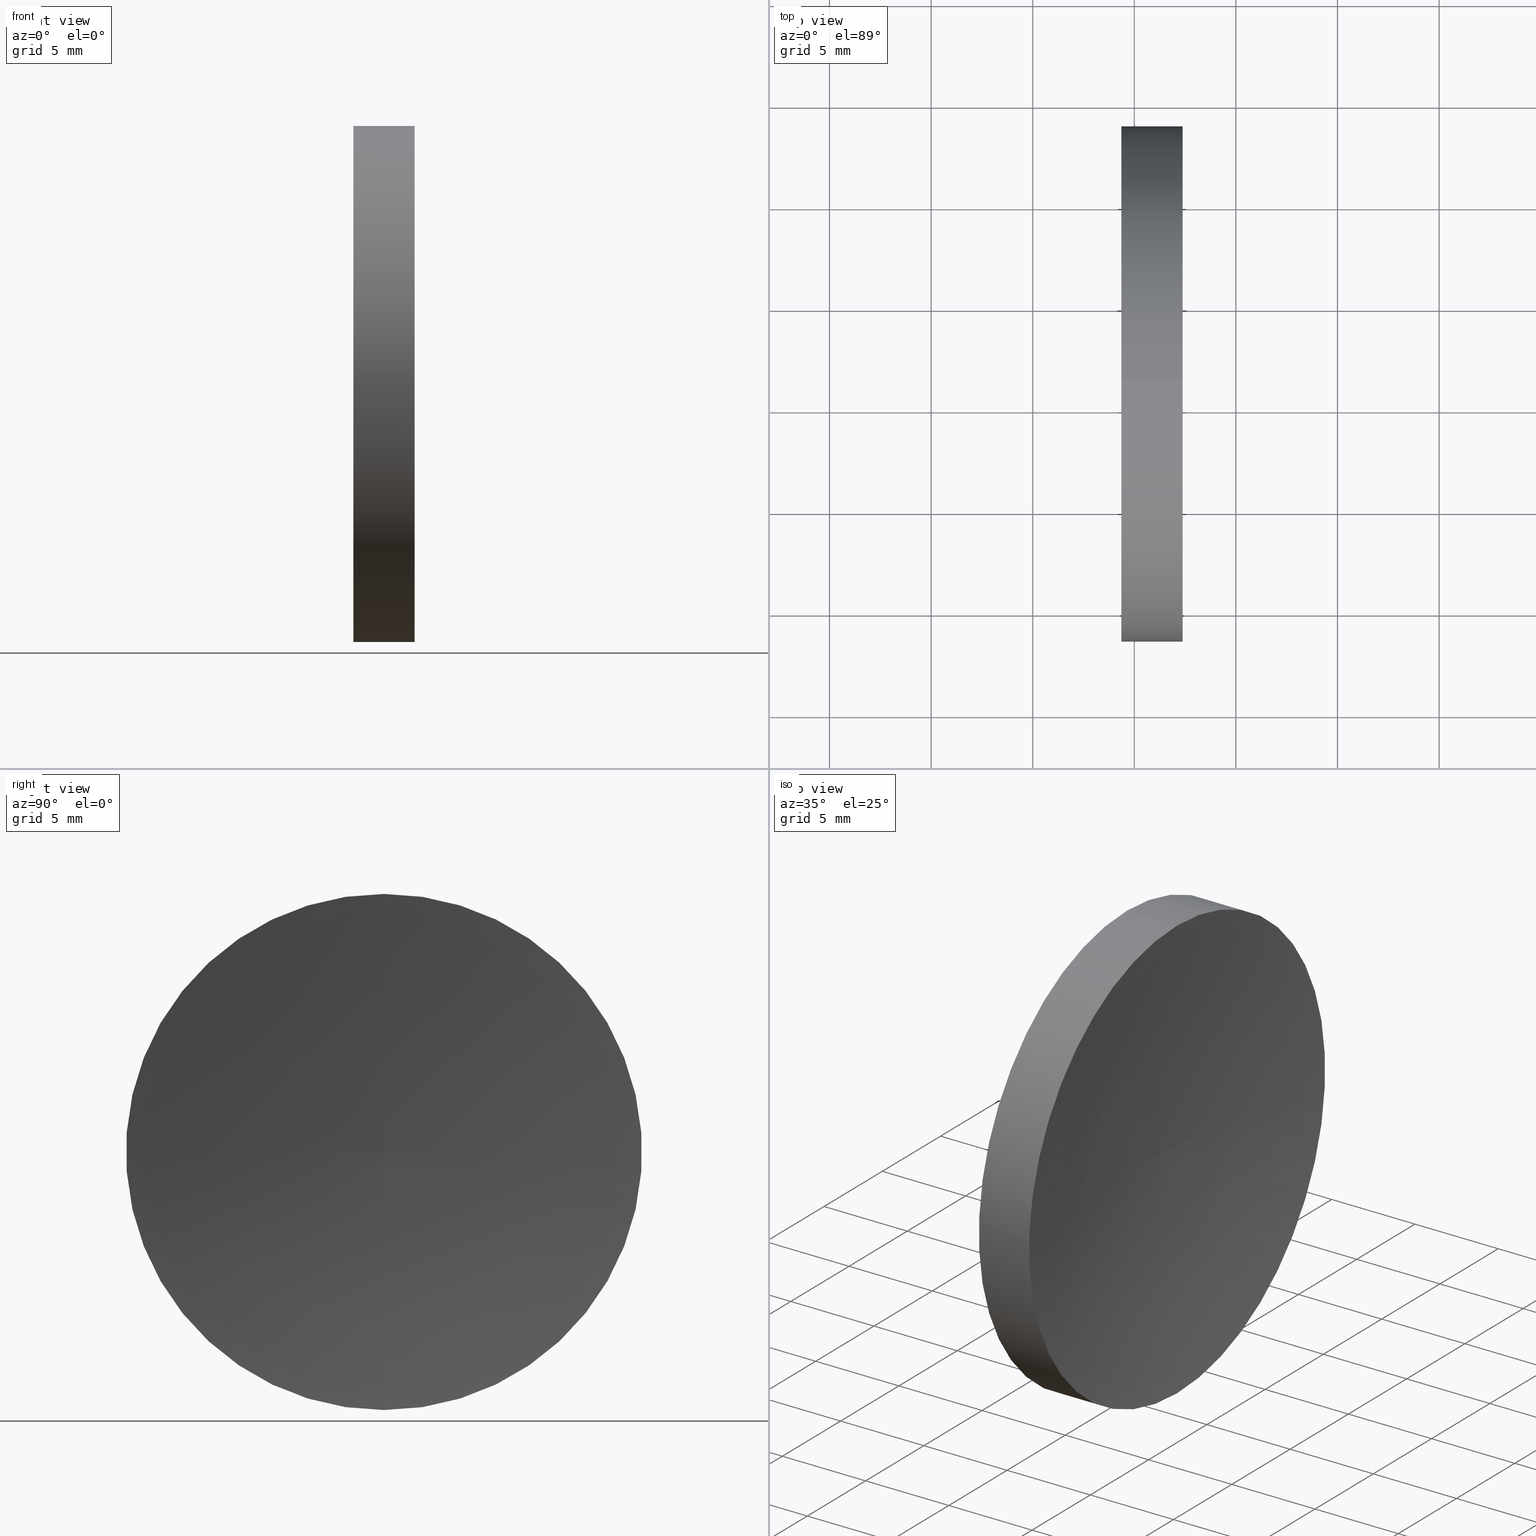
[diagram: canonical four-view strip — front | top / right | iso, engineering-drawing reading convention]
A machine part, canonical four-view strip (front | top / right | iso — engineering-drawing reading convention). The complete STEP part file that produces these views, byte-faithful:
ISO-10303-21;
HEADER;
FILE_DESCRIPTION (( 'STEP AP214' ),
    '1' );
FILE_NAME ('120269.STEP',
    '2019-06-25T03:28:47',
    ( '' ),
    ( '' ),
    'SwSTEP 2.0',
    'SolidWorks 2016',
    '' );
FILE_SCHEMA (( 'AUTOMOTIVE_DESIGN' ));
ENDSEC;

DATA;
#1 = ORIENTED_EDGE ( 'NONE', *, *, #23, .T. ) ;
#2 = CARTESIAN_POINT ( 'NONE',  ( 201.5929279294802000, 71.19398908659370300, 0.02143188014522290400 ) ) ;
#3 = DIRECTION ( 'NONE',  ( 0.0000000000000000000, 0.0000000000000000000, 1.000000000000000000 ) ) ;
#4 = CYLINDRICAL_SURFACE ( 'NONE', #152, 12.69999999999998900 ) ;
#5 = PRODUCT_DEFINITION_SHAPE ( 'NONE', 'NONE',  #13 ) ;
#6 = CIRCLE ( 'NONE', #141, 12.70000000000000300 ) ;
#7 = AXIS2_PLACEMENT_3D ( 'NONE', #111, #52, #41 ) ;
#8 = ORIENTED_EDGE ( 'NONE', *, *, #32, .T. ) ;
#9 = DIRECTION ( 'NONE',  ( 0.0000000000000000000, 0.0000000000000000000, 1.000000000000000000 ) ) ;
#10 = DIRECTION ( 'NONE',  ( -1.000000000000000000, -0.0000000000000000000, -0.0000000000000000000 ) ) ;
#11 = MECHANICAL_DESIGN_GEOMETRIC_PRESENTATION_REPRESENTATION (  '', ( #31 ), #85 ) ;
#12 = DIRECTION ( 'NONE',  ( 0.0000000000000000000, -1.000000000000000000, 0.0000000000000000000 ) ) ;
#13 = PRODUCT_DEFINITION ( 'δ֪', '', #54, #126 ) ;
#14 =( NAMED_UNIT ( * ) SI_UNIT ( $, .STERADIAN. ) SOLID_ANGLE_UNIT ( ) );
#15 = ORIENTED_EDGE ( 'NONE', *, *, #105, .T. ) ;
#16 = APPLICATION_PROTOCOL_DEFINITION ( 'draft international standard', 'automotive_design', 1998, #25 ) ;
#17 =( LENGTH_UNIT ( ) NAMED_UNIT ( * ) SI_UNIT ( .MILLI., .METRE. ) );
#18 = AXIS2_PLACEMENT_3D ( 'NONE', #99, #61, #24 ) ;
#19 =( GEOMETRIC_REPRESENTATION_CONTEXT ( 3 ) GLOBAL_UNCERTAINTY_ASSIGNED_CONTEXT ( ( #136 ) ) GLOBAL_UNIT_ASSIGNED_CONTEXT ( ( #17, #140, #14 ) ) REPRESENTATION_CONTEXT ( 'NONE', 'WORKASPACE' ) );
#20 = DIRECTION ( 'NONE',  ( -1.000000000000000000, -0.0000000000000000000, -0.0000000000000000000 ) ) ;
#21 = DIRECTION ( 'NONE',  ( -1.000000000000000000, -0.0000000000000000000, -0.0000000000000000000 ) ) ;
#22 = ORIENTED_EDGE ( 'NONE', *, *, #32, .F. ) ;
#23 = EDGE_CURVE ( 'NONE', #90, #123, #156, .T. ) ;
#24 = DIRECTION ( 'NONE',  ( 0.0000000000000000000, 0.0000000000000000000, 1.000000000000000000 ) ) ;
#25 = APPLICATION_CONTEXT ( 'automotive_design' ) ;
#26 = ORIENTED_EDGE ( 'NONE', *, *, #27, .F. ) ;
#27 = EDGE_CURVE ( 'NONE', #90, #155, #120, .T. ) ;
#28 = ORIENTED_EDGE ( 'NONE', *, *, #45, .T. ) ;
#29 = ADVANCED_FACE ( 'NONE', ( #92 ), #89, .T. ) ;
#30 = VECTOR ( 'NONE', #21, 1000.000000000000000 ) ;
#31 = STYLED_ITEM ( 'NONE', ( #113 ), #69 ) ;
#32 = EDGE_CURVE ( 'NONE', #46, #123, #6, .T. ) ;
#33 = PRODUCT ( '120269', '120269', '', ( #83 ) ) ;
#34 = FACE_OUTER_BOUND ( 'NONE', #79, .T. ) ;
#35 = CARTESIAN_POINT ( 'NONE',  ( 122.3779162781598300, 71.19398908659370300, -12.69999999999996600 ) ) ;
#36 = ORIENTED_EDGE ( 'NONE', *, *, #91, .T. ) ;
#37 = SHAPE_DEFINITION_REPRESENTATION ( #5, #69 ) ;
#38 = CARTESIAN_POINT ( 'NONE',  ( 122.3779162781598300, 71.19398908659370300, 0.0000000000000000000 ) ) ;
#39 = FILL_AREA_STYLE_COLOUR ( '', #103 ) ;
#40 = FILL_AREA_STYLE_COLOUR ( '', #56 ) ;
#41 = DIRECTION ( 'NONE',  ( 0.0000000000000000000, 0.0000000000000000000, -1.000000000000000000 ) ) ;
#42 = CIRCLE ( 'NONE', #161, 80.22999999999996100 ) ;
#43 = AXIS2_PLACEMENT_3D ( 'NONE', #65, #82, #3 ) ;
#44 = DIRECTION ( 'NONE',  ( 0.0000000000000000000, 0.0000000000000000000, 1.000000000000000000 ) ) ;
#45 = EDGE_CURVE ( 'NONE', #155, #46, #130, .T. ) ;
#46 = VERTEX_POINT ( 'NONE', #110 ) ;
#47 = PRESENTATION_LAYER_ASSIGNMENT (  '', '', ( #31 ) ) ;
#48 = CARTESIAN_POINT ( 'NONE',  ( 111.9552297575605700, 71.19398908659370300, 0.0000000000000000000 ) ) ;
#49 = DIRECTION ( 'NONE',  ( -1.000000000000000000, -0.0000000000000000000, -0.0000000000000000000 ) ) ;
#50 =( NAMED_UNIT ( * ) PLANE_ANGLE_UNIT ( ) SI_UNIT ( $, .RADIAN. ) );
#51 = CIRCLE ( 'NONE', #43, 12.69999999999997400 ) ;
#52 = DIRECTION ( 'NONE',  ( 1.000000000000000000, 0.0000000000000000000, 0.0000000000000000000 ) ) ;
#53 = APPLICATION_CONTEXT ( 'automotive_design' ) ;
#54 = PRODUCT_DEFINITION_FORMATION_WITH_SPECIFIED_SOURCE ( '�κ�', '', #33, .NOT_KNOWN. ) ;
#55 = ADVANCED_FACE ( 'NONE', ( #34 ), #160, .F. ) ;
#56 = COLOUR_RGB ( '',1.000000000000000000, 1.000000000000000000, 1.000000000000000000 ) ;
#57 =( GEOMETRIC_REPRESENTATION_CONTEXT ( 3 ) GLOBAL_UNCERTAINTY_ASSIGNED_CONTEXT ( ( #59 ) ) GLOBAL_UNIT_ASSIGNED_CONTEXT ( ( #164, #50, #165 ) ) REPRESENTATION_CONTEXT ( 'NONE', 'WORKASPACE' ) );
#58 = ORIENTED_EDGE ( 'NONE', *, *, #27, .T. ) ;
#59 = UNCERTAINTY_MEASURE_WITH_UNIT (LENGTH_MEASURE( 1.000000000000000100E-005 ), #164, 'distance_accuracy_value', 'NONE');
#60 = DIRECTION ( 'NONE',  ( 0.0000000000000000000, 0.0000000000000000000, 1.000000000000000000 ) ) ;
#61 = DIRECTION ( 'NONE',  ( -1.000000000000000000, -0.0000000000000000000, -0.0000000000000000000 ) ) ;
#62 = SURFACE_STYLE_USAGE ( .BOTH. , #145 ) ;
#63 = DIRECTION ( 'NONE',  ( 0.0000000000000000000, -1.729750443451883900E-016, 1.000000000000000000 ) ) ;
#64 = TOROIDAL_SURFACE ( 'NONE', #109, -0.02143188014522290400, 80.22999999999996100 ) ;
#65 = CARTESIAN_POINT ( 'NONE',  ( 122.3779162781598300, 71.19398908659370300, 0.0000000000000000000 ) ) ;
#66 = CIRCLE ( 'NONE', #128, 80.22999999999996100 ) ;
#67 = PRESENTATION_STYLE_ASSIGNMENT (( #62 ) ) ;
#68 = ORIENTED_EDGE ( 'NONE', *, *, #91, .F. ) ;
#69 = ADVANCED_BREP_SHAPE_REPRESENTATION ( '120269', ( #108, #129 ), #19 ) ;
#70 = CIRCLE ( 'NONE', #18, 12.70000000000000300 ) ;
#71 = DIRECTION ( 'NONE',  ( 0.0000000000000000000, 0.0000000000000000000, 1.000000000000000000 ) ) ;
#72 = AXIS2_PLACEMENT_3D ( 'NONE', #38, #20, #60 ) ;
#73 = CARTESIAN_POINT ( 'NONE',  ( 119.3629307920347200, 71.19398908659370300, 0.0000000000000000000 ) ) ;
#74 = EDGE_LOOP ( 'NONE', ( #8, #36 ) ) ;
#75 = CARTESIAN_POINT ( 'NONE',  ( 122.3779162781598300, 71.19398908659370300, 12.69999999999996600 ) ) ;
#76 = UNCERTAINTY_MEASURE_WITH_UNIT (LENGTH_MEASURE( 1.000000000000000100E-005 ), #119, 'distance_accuracy_value', 'NONE');
#77 = ADVANCED_FACE ( 'NONE', ( #125 ), #64, .F. ) ;
#78 = SURFACE_STYLE_FILL_AREA ( #124 ) ;
#79 = EDGE_LOOP ( 'NONE', ( #149, #117, #15 ) ) ;
#80 = DIRECTION ( 'NONE',  ( 0.0000000000000000000, 0.0000000000000000000, 1.000000000000000000 ) ) ;
#81 = DIRECTION ( 'NONE',  ( -1.000000000000000000, -0.0000000000000000000, -0.0000000000000000000 ) ) ;
#82 = DIRECTION ( 'NONE',  ( -1.000000000000000000, -0.0000000000000000000, -0.0000000000000000000 ) ) ;
#83 = PRODUCT_CONTEXT ( 'NONE', #53, 'mechanical' ) ;
#84 =( NAMED_UNIT ( * ) SI_UNIT ( $, .STERADIAN. ) SOLID_ANGLE_UNIT ( ) );
#85 =( GEOMETRIC_REPRESENTATION_CONTEXT ( 3 ) GLOBAL_UNCERTAINTY_ASSIGNED_CONTEXT ( ( #76 ) ) GLOBAL_UNIT_ASSIGNED_CONTEXT ( ( #119, #122, #84 ) ) REPRESENTATION_CONTEXT ( 'NONE', 'WORKASPACE' ) );
#86 = SURFACE_STYLE_USAGE ( .BOTH. , #154 ) ;
#87 = VERTEX_POINT ( 'NONE', #116 ) ;
#88 = ADVANCED_FACE ( 'NONE', ( #134 ), #4, .T. ) ;
#89 = CYLINDRICAL_SURFACE ( 'NONE', #112, 12.69999999999998900 ) ;
#90 = VERTEX_POINT ( 'NONE', #35 ) ;
#91 = EDGE_CURVE ( 'NONE', #123, #46, #70, .T. ) ;
#92 = FACE_OUTER_BOUND ( 'NONE', #131, .T. ) ;
#93 = CARTESIAN_POINT ( 'NONE',  ( 111.9552297575605700, 71.19398908659370300, 12.69999999999998900 ) ) ;
#94 = ORIENTED_EDGE ( 'NONE', *, *, #143, .T. ) ;
#95 = AXIS2_PLACEMENT_3D ( 'NONE', #115, #135, #80 ) ;
#96 = DIRECTION ( 'NONE',  ( 0.0000000000000000000, 0.0000000000000000000, 1.000000000000000000 ) ) ;
#97 = PRODUCT_RELATED_PRODUCT_CATEGORY ( 'part', '', ( #33 ) ) ;
#98 = CARTESIAN_POINT ( 'NONE',  ( 119.3629307920347200, 71.19398908659370300, -12.70000000000000300 ) ) ;
#99 = CARTESIAN_POINT ( 'NONE',  ( 119.3629307920347200, 71.19398908659370300, 0.0000000000000000000 ) ) ;
#100 = DIRECTION ( 'NONE',  ( 0.0000000000000000000, 0.0000000000000000000, 1.000000000000000000 ) ) ;
#101 = VECTOR ( 'NONE', #81, 1000.000000000000000 ) ;
#102 = DIRECTION ( 'NONE',  ( 1.000000000000000000, 0.0000000000000000000, 0.0000000000000000000 ) ) ;
#103 = COLOUR_RGB ( '',1.000000000000000000, 1.000000000000000000, 1.000000000000000000 ) ;
#104 = CARTESIAN_POINT ( 'NONE',  ( 0.0000000000000000000, 0.0000000000000000000, 0.0000000000000000000 ) ) ;
#105 = EDGE_CURVE ( 'NONE', #155, #87, #42, .T. ) ;
#106 = ORIENTED_EDGE ( 'NONE', *, *, #105, .F. ) ;
#107 = ORIENTED_EDGE ( 'NONE', *, *, #45, .F. ) ;
#108 = MANIFOLD_SOLID_BREP ( '��ת1', #138 ) ;
#109 = AXIS2_PLACEMENT_3D ( 'NONE', #146, #10, #96 ) ;
#110 = CARTESIAN_POINT ( 'NONE',  ( 119.3629307920347200, 71.19398908659370300, 12.70000000000000300 ) ) ;
#111 = CARTESIAN_POINT ( 'NONE',  ( 119.3629307920347200, 71.19398908659370300, 0.0000000000000000000 ) ) ;
#112 = AXIS2_PLACEMENT_3D ( 'NONE', #48, #148, #9 ) ;
#113 = PRESENTATION_STYLE_ASSIGNMENT (( #86 ) ) ;
#114 = FILL_AREA_STYLE ('',( #39 ) ) ;
#115 = CARTESIAN_POINT ( 'NONE',  ( 201.5929279294802000, 71.19398908659370300, 0.0000000000000000000 ) ) ;
#116 = CARTESIAN_POINT ( 'NONE',  ( 121.3629307920347200, 71.19398908659370300, 0.0000000000000000000 ) ) ;
#117 = ORIENTED_EDGE ( 'NONE', *, *, #143, .F. ) ;
#118 = DIRECTION ( 'NONE',  ( 0.0000000000000000000, 0.0000000000000000000, -1.000000000000000000 ) ) ;
#119 =( LENGTH_UNIT ( ) NAMED_UNIT ( * ) SI_UNIT ( .MILLI., .METRE. ) );
#120 = CIRCLE ( 'NONE', #72, 12.69999999999997400 ) ;
#121 = PRESENTATION_LAYER_ASSIGNMENT (  '', '', ( #157 ) ) ;
#122 =( NAMED_UNIT ( * ) PLANE_ANGLE_UNIT ( ) SI_UNIT ( $, .RADIAN. ) );
#123 = VERTEX_POINT ( 'NONE', #98 ) ;
#124 = FILL_AREA_STYLE ('',( #40 ) ) ;
#125 = FACE_OUTER_BOUND ( 'NONE', #144, .T. ) ;
#126 = PRODUCT_DEFINITION_CONTEXT ( 'detailed design', #25, 'design' ) ;
#127 = SURFACE_STYLE_FILL_AREA ( #114 ) ;
#128 = AXIS2_PLACEMENT_3D ( 'NONE', #2, #153, #63 ) ;
#129 = AXIS2_PLACEMENT_3D ( 'NONE', #104, #44, #102 ) ;
#130 = LINE ( 'NONE', #93, #101 ) ;
#131 = EDGE_LOOP ( 'NONE', ( #162, #58, #28, #68 ) ) ;
#132 = EDGE_CURVE ( 'NONE', #90, #87, #66, .T. ) ;
#133 = CARTESIAN_POINT ( 'NONE',  ( 111.9552297575605700, 71.19398908659370300, 0.0000000000000000000 ) ) ;
#134 = FACE_OUTER_BOUND ( 'NONE', #158, .T. ) ;
#135 = DIRECTION ( 'NONE',  ( -1.000000000000000000, -0.0000000000000000000, -0.0000000000000000000 ) ) ;
#136 = UNCERTAINTY_MEASURE_WITH_UNIT (LENGTH_MEASURE( 1.000000000000000100E-005 ), #17, 'distance_accuracy_value', 'NONE');
#137 = PLANE ( 'NONE',  #7 ) ;
#138 = CLOSED_SHELL ( 'NONE', ( #88, #77, #55, #29, #142 ) ) ;
#139 = ORIENTED_EDGE ( 'NONE', *, *, #132, .T. ) ;
#140 =( NAMED_UNIT ( * ) PLANE_ANGLE_UNIT ( ) SI_UNIT ( $, .RADIAN. ) );
#141 = AXIS2_PLACEMENT_3D ( 'NONE', #73, #166, #71 ) ;
#142 = ADVANCED_FACE ( 'NONE', ( #159 ), #137, .F. ) ;
#143 = EDGE_CURVE ( 'NONE', #155, #90, #51, .T. ) ;
#144 = EDGE_LOOP ( 'NONE', ( #26, #139, #106 ) ) ;
#145 = SURFACE_SIDE_STYLE ('',( #127 ) ) ;
#146 = CARTESIAN_POINT ( 'NONE',  ( 201.5929279294802000, 71.19398908659370300, 0.0000000000000000000 ) ) ;
#147 = MECHANICAL_DESIGN_GEOMETRIC_PRESENTATION_REPRESENTATION (  '', ( #157 ), #57 ) ;
#148 = DIRECTION ( 'NONE',  ( -1.000000000000000000, -0.0000000000000000000, -0.0000000000000000000 ) ) ;
#149 = ORIENTED_EDGE ( 'NONE', *, *, #132, .F. ) ;
#150 = CARTESIAN_POINT ( 'NONE',  ( 201.5929279294802000, 71.19398908659370300, -0.02143188014522290400 ) ) ;
#151 = APPLICATION_PROTOCOL_DEFINITION ( 'draft international standard', 'automotive_design', 1998, #53 ) ;
#152 = AXIS2_PLACEMENT_3D ( 'NONE', #133, #49, #100 ) ;
#153 = DIRECTION ( 'NONE',  ( -0.0000000000000000000, 1.000000000000000000, 1.224646799147353200E-016 ) ) ;
#154 = SURFACE_SIDE_STYLE ('',( #78 ) ) ;
#155 = VERTEX_POINT ( 'NONE', #75 ) ;
#156 = LINE ( 'NONE', #163, #30 ) ;
#157 = STYLED_ITEM ( 'NONE', ( #67 ), #108 ) ;
#158 = EDGE_LOOP ( 'NONE', ( #94, #1, #22, #107 ) ) ;
#159 = FACE_OUTER_BOUND ( 'NONE', #74, .T. ) ;
#160 = TOROIDAL_SURFACE ( 'NONE', #95, -0.02143188014522290400, 80.22999999999996100 ) ;
#161 = AXIS2_PLACEMENT_3D ( 'NONE', #150, #12, #118 ) ;
#162 = ORIENTED_EDGE ( 'NONE', *, *, #23, .F. ) ;
#163 = CARTESIAN_POINT ( 'NONE',  ( 111.9552297575605700, 71.19398908659370300, -12.69999999999998900 ) ) ;
#164 =( LENGTH_UNIT ( ) NAMED_UNIT ( * ) SI_UNIT ( .MILLI., .METRE. ) );
#165 =( NAMED_UNIT ( * ) SI_UNIT ( $, .STERADIAN. ) SOLID_ANGLE_UNIT ( ) );
#166 = DIRECTION ( 'NONE',  ( -1.000000000000000000, -0.0000000000000000000, -0.0000000000000000000 ) ) ;
ENDSEC;
END-ISO-10303-21;
